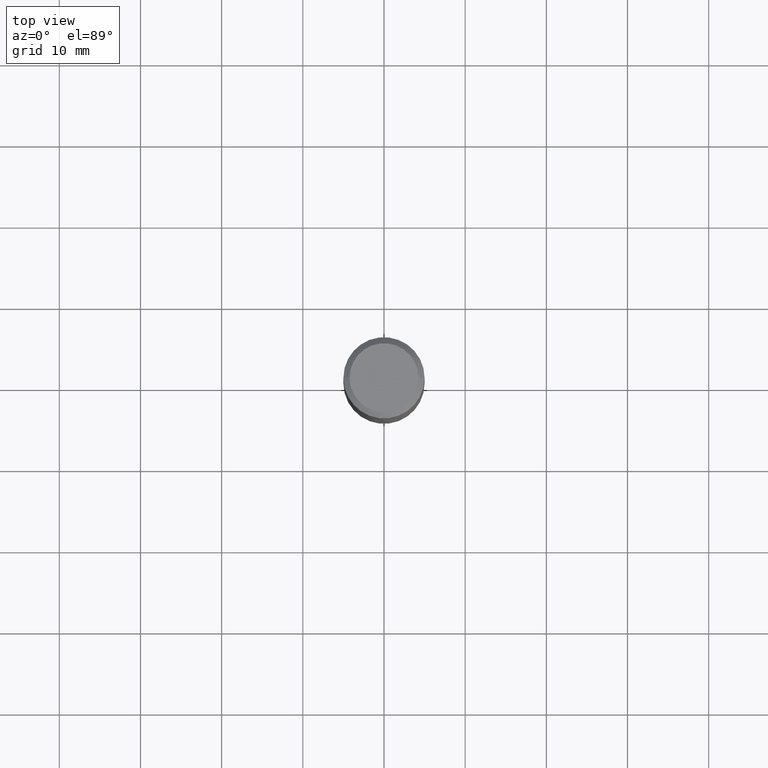
[diagram: clean part render]
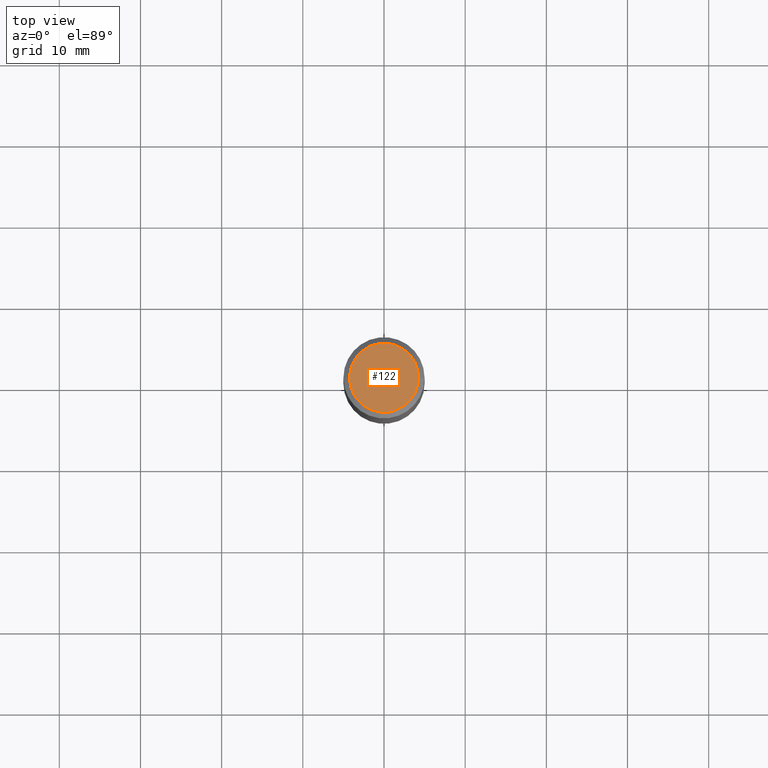
[diagram: same view with one face highlighted and labeled with its STEP entity id]
A machine part, top view. The second image highlights one B-rep face of the part: STEP entity #122.
In plain terms, the highlighted planar face has unit normal (0, -0, -1).
Its self-contained STEP definition (entity closure, byte-faithful):
#34 = EDGE_CURVE ( 'NONE', #306, #173, #138, .T. ) ;
#38 = DIRECTION ( 'NONE',  ( -2.445468806185136597E-29, 3.491481338843145583E-15, 1.000000000000000000 ) ) ;
#41 = DIRECTION ( 'NONE',  ( 1.000000000000000000, -6.982962677686267499E-15, 4.876294436782262290E-29 ) ) ;
#49 = DIRECTION ( 'NONE',  ( 2.438088387897960049E-29, -3.491481338843145188E-15, -1.000000000000000000 ) ) ;
#102 = DIRECTION ( 'NONE',  ( -2.445468806185136597E-29, 3.491481338843145583E-15, 1.000000000000000000 ) ) ;
#116 = ORIENTED_EDGE ( 'NONE', *, *, #34, .T. ) ;
#122 = ADVANCED_FACE ( 'NONE', ( #274 ), #211, .F. ) ;
#133 = CARTESIAN_POINT ( 'NONE',  ( -5.008488096090108951E-47, 7.150793614331948590E-33, 2.048068690724054183E-18 ) ) ;
#138 = CIRCLE ( 'NONE', #412, 0.1673224999999999851 ) ;
#149 = EDGE_LOOP ( 'NONE', ( #429, #116 ) ) ;
#173 = VERTEX_POINT ( 'NONE', #241 ) ;
#182 = CARTESIAN_POINT ( 'NONE',  ( -1.001697619218021790E-46, 1.430158722866389718E-32, 4.096137381448108366E-18 ) ) ;
#211 = PLANE ( 'NONE',  #454 ) ;
#241 = CARTESIAN_POINT ( 'NONE',  ( -0.1673224999999999851, 1.219954130253505460E-15, 4.096137381439757534E-18 ) ) ;
#254 = DIRECTION ( 'NONE',  ( 1.000000000000000000, -6.982962677686267499E-15, 4.876294436782262290E-29 ) ) ;
#267 = CARTESIAN_POINT ( 'NONE',  ( -1.001697619218021790E-46, 1.430158722866389718E-32, 4.096137381448108366E-18 ) ) ;
#274 = FACE_OUTER_BOUND ( 'NONE', #149, .T. ) ;
#275 = CIRCLE ( 'NONE', #284, 0.1673224999999999851 ) ;
#284 = AXIS2_PLACEMENT_3D ( 'NONE', #182, #102, #254 ) ;
#295 = EDGE_CURVE ( 'NONE', #173, #306, #275, .T. ) ;
#306 = VERTEX_POINT ( 'NONE', #325 ) ;
#308 = DIRECTION ( 'NONE',  ( -1.000000000000000000, 6.982962677686265922E-15, -4.876176775795935793E-29 ) ) ;
#325 = CARTESIAN_POINT ( 'NONE',  ( 0.1673224999999999851, -1.300749711163072594E-15, 4.096137381456741925E-18 ) ) ;
#412 = AXIS2_PLACEMENT_3D ( 'NONE', #267, #38, #41 ) ;
#429 = ORIENTED_EDGE ( 'NONE', *, *, #295, .T. ) ;
#454 = AXIS2_PLACEMENT_3D ( 'NONE', #133, #49, #308 ) ;